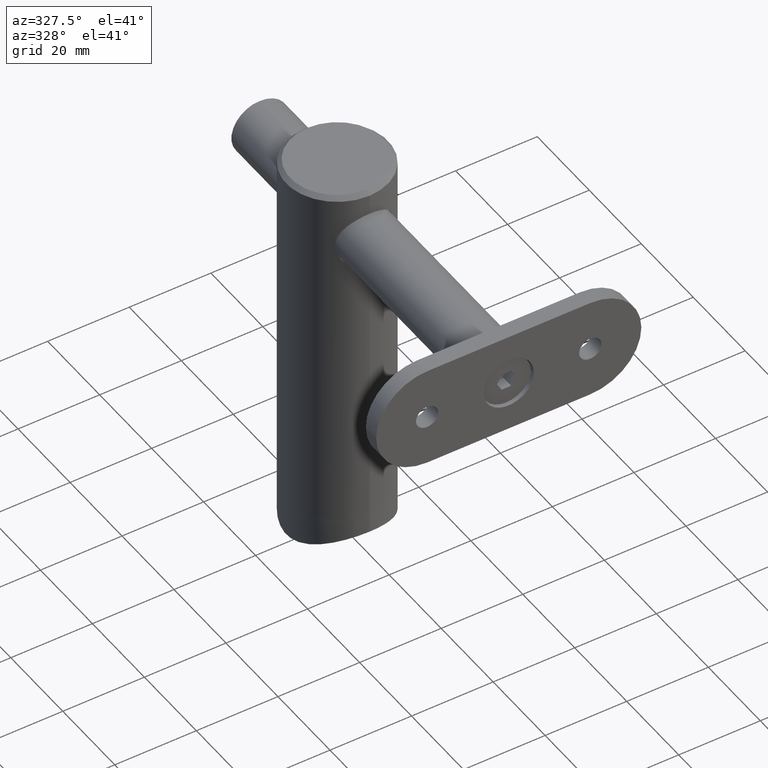
[diagram: clean part render]
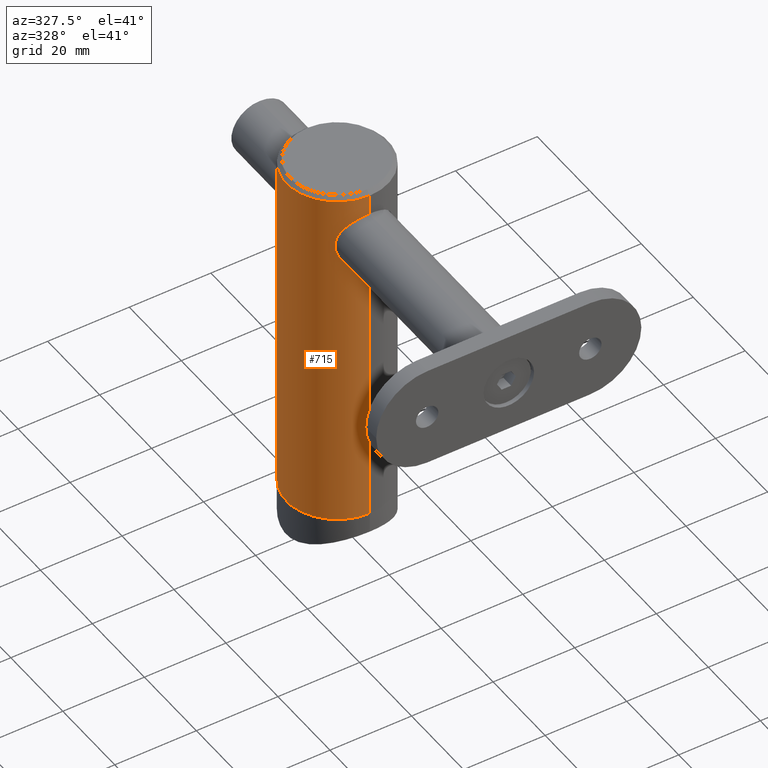
[diagram: same view with one face highlighted and labeled with its STEP entity id]
A machine part, auxiliary view. The second image highlights one B-rep face of the part: STEP entity #715.
In plain terms, the highlighted cylindrical surface (partial cylindrical patch) has radius 12.5 mm, axis along (0, 0, -1).
Its self-contained STEP definition (entity closure, byte-faithful):
#96 = VERTEX_POINT ( 'NONE', #14581 ) ;
#141 = CARTESIAN_POINT ( 'NONE',  ( -6.148078400945676592, -10.88734605281070422, 78.58038588945871084 ) ) ;
#159 = ORIENTED_EDGE ( 'NONE', *, *, #15723, .F. ) ;
#168 = CARTESIAN_POINT ( 'NONE',  ( 0.000000000000000000, 12.49999999999999467, 87.00000000000000000 ) ) ;
#201 = CARTESIAN_POINT ( 'NONE',  ( -5.633085906007541332, -11.16254692090160461, 70.65396086375709217 ) ) ;
#267 = CARTESIAN_POINT ( 'NONE',  ( -0.9511355239451600996, -12.47236506100288445, 67.94834280267892268 ) ) ;
#338 = VERTEX_POINT ( 'NONE', #168 ) ;
#339 = CARTESIAN_POINT ( 'NONE',  ( -5.345048310374298950, -11.30501070537479791, 70.30460859623606495 ) ) ;
#432 = DIRECTION ( 'NONE',  ( -0.000000000000000000, 1.098045870766271941E-16, -1.000000000000000000 ) ) ;
#597 = EDGE_LOOP ( 'NONE', ( #159, #1292, #5007, #14484, #14548, #3759, #16360, #18716, #14000, #17195 ) ) ;
#673 = EDGE_CURVE ( 'NONE', #7620, #16041, #17970, .T. ) ;
#686 = DIRECTION ( 'NONE',  ( 0.000000000000000000, -1.000000000000000000, 0.000000000000000000 ) ) ;
#715 = ADVANCED_FACE ( 'NONE', ( #14271 ), #4097, .T. ) ;
#802 = DIRECTION ( 'NONE',  ( -0.000000000000000000, 1.098045870766271941E-16, -1.000000000000000000 ) ) ;
#822 = CARTESIAN_POINT ( 'NONE',  ( 0.000000000000000000, -6.829089316830601455E-15, 87.00000000000000000 ) ) ;
#880 = VECTOR ( 'NONE', #11729, 1000.000000000000000 ) ;
#914 = CARTESIAN_POINT ( 'NONE',  ( -7.003725121456042757, 10.35379304955138124, 73.81127548781321934 ) ) ;
#983 = CARTESIAN_POINT ( 'NONE',  ( -6.146595381488635823, 10.88816703618159565, 71.41721095202193226 ) ) ;
#1045 = CARTESIAN_POINT ( 'NONE',  ( -6.853982002503376414, 10.45369377733144312, 76.86763025503729807 ) ) ;
#1107 = CARTESIAN_POINT ( 'NONE',  ( -7.039363743819929020, 10.32948239257338408, 74.04422229401671984 ) ) ;
#1153 = CARTESIAN_POINT ( 'NONE',  ( -1.823189292361671265, 12.36656387944243640, 5.051110966584160700 ) ) ;
#1232 = CARTESIAN_POINT ( 'NONE',  ( -0.9302022205380907627, 12.46598422166855258, 2.112292869818887642 ) ) ;
#1292 = ORIENTED_EDGE ( 'NONE', *, *, #4589, .T. ) ;
#1308 = CARTESIAN_POINT ( 'NONE',  ( -0.4811991486314993738, 12.49299174562365344, 82.08768211575331009 ) ) ;
#1352 = CARTESIAN_POINT ( 'NONE',  ( -0.2743003893079644095, 12.50000000000000355, 1.900000000000005462 ) ) ;
#1439 = CARTESIAN_POINT ( 'NONE',  ( -5.350137245759822413, 11.30260226496380405, 79.68962492468297398 ) ) ;
#1636 = CARTESIAN_POINT ( 'NONE',  ( 1.290313625304569330E-16, -12.50000000000000888, 82.09999999999999432 ) ) ;
#1806 = CARTESIAN_POINT ( 'NONE',  ( 0.000000000000000000, 2.723909758835963716E-15, 0.000000000000000000 ) ) ;
#1826 = CARTESIAN_POINT ( 'NONE',  ( -6.355184909898128787, -10.76464359171548146, 71.82596901323131533 ) ) ;
#1890 = CARTESIAN_POINT ( 'NONE',  ( -4.356324323330959203, -11.72326304938613184, 80.62539833997443850 ) ) ;
#2119 = VECTOR ( 'NONE', #11003, 1000.000000000000000 ) ;
#2424 = CARTESIAN_POINT ( 'NONE',  ( -0.4799539051028682834, 12.49999999999999822, 67.90000000000000568 ) ) ;
#2486 = CARTESIAN_POINT ( 'NONE',  ( -5.628902018887846026, 11.16205403663977691, 70.66670042335572077 ) ) ;
#2526 = AXIS2_PLACEMENT_3D ( 'NONE', #822, #9616, #686 ) ;
#2603 = CARTESIAN_POINT ( 'NONE',  ( -5.186797260141185362, 11.37442896416548521, 70.14630031359379814 ) ) ;
#2719 = CARTESIAN_POINT ( 'NONE',  ( -1.052645575539821632, 12.45612933409647205, 2.177666326171957323 ) ) ;
#2732 = CARTESIAN_POINT ( 'NONE',  ( -4.699254457469035806, 11.58459427111668205, 80.32723125532280051 ) ) ;
#2792 = CARTESIAN_POINT ( 'NONE',  ( 0.000000000000000000, 12.50000000000000000, 1.372557338457839692E-15 ) ) ;
#3132 = CARTESIAN_POINT ( 'NONE',  ( -1.874052461373487910, -12.36744064349519334, 81.86437246242218180 ) ) ;
#3319 = CARTESIAN_POINT ( 'NONE',  ( -2.542285523396217606, -12.24072011514205194, 68.36667086906035706 ) ) ;
#3381 = CARTESIAN_POINT ( 'NONE',  ( -0.4809610958689493065, -12.50000000000000711, 67.89999999999999147 ) ) ;
#3759 = ORIENTED_EDGE ( 'NONE', *, *, #7703, .F. ) ;
#3903 = B_SPLINE_CURVE_WITH_KNOTS ( 'NONE', 3,
 ( #1636, #6241, #12234, #3132, #15127, #7630, #13530, #1890, #16612, #7757, #6055, #16423, #18095, #141, #7572, #17903, #12296, #4616, #9053, #9246, #15005, #16489, #12051, #13707, #6185, #6125, #1826, #9121, #17974, #201, #339, #10559, #10752, #10684, #4818, #3319, #9302, #15195, #6308, #267, #3381, #10622 ),
 .UNSPECIFIED., .F., .F.,
 ( 4, 2, 2, 2, 2, 2, 2, 2, 2, 2, 2, 2, 2, 2, 2, 2, 2, 2, 2, 2, 4 ),
 ( 1.250545881557408011E-19, 0.001419307301426417974, 0.002838614602852835515, 0.004257921904279252621, 0.005677229205705669295, 0.006386882856418878499, 0.007096536507132086835, 0.008515843808558505243, 0.009935151109984921916, 0.01135445841141133859, 0.01277376571283775873, 0.01348341936355096707, 0.01419307301426417714, 0.01490272666497738548, 0.01561238031569059381, 0.01703168761711697926, 0.01845099491854336471, 0.01987030221996975016, 0.02057995587068294288, 0.02128960952139613561, 0.02270891682282252105 ),
 .UNSPECIFIED. ) ;
#3935 = EDGE_CURVE ( 'NONE', #5016, #12180, #3903, .T. ) ;
#3981 = CARTESIAN_POINT ( 'NONE',  ( -3.591928364928691053, 11.97960984808971929, 68.85822097251376306 ) ) ;
#4024 = VECTOR ( 'NONE', #16370, 1000.000000000000000 ) ;
#4036 = CARTESIAN_POINT ( 'NONE',  ( -1.992762697854684184, 12.34024839959371889, 4.676597208822471430 ) ) ;
#4051 = CARTESIAN_POINT ( 'NONE',  ( -6.357972462635662403, 10.76299649604914954, 78.16845701976458827 ) ) ;
#4097 = CYLINDRICAL_SURFACE ( 'NONE', #17131, 12.50000000000000178 ) ;
#4220 = CARTESIAN_POINT ( 'NONE',  ( -1.992047017919825969, 12.34036526571288306, 3.321224189597172138 ) ) ;
#4233 = CARTESIAN_POINT ( 'NONE',  ( 1.310074275435993587E-16, 12.49999999999999467, 82.09999999999999432 ) ) ;
#4238 = VERTEX_POINT ( 'NONE', #15934 ) ;
#4285 = CARTESIAN_POINT ( 'NONE',  ( -1.059040836926604667, 12.45762628977003494, 5.833907784815527187 ) ) ;
#4424 = CARTESIAN_POINT ( 'NONE',  ( -4.346392963122591269, 11.72154789661119878, 80.61883026206068337 ) ) ;
#4589 = EDGE_CURVE ( 'NONE', #4238, #338, #17818, .T. ) ;
#4616 = CARTESIAN_POINT ( 'NONE',  ( -7.051303418075907992, -10.32191336193628217, 75.95439068768591540 ) ) ;
#4818 = CARTESIAN_POINT ( 'NONE',  ( -3.186329035902472295, -12.09508519001900240, 68.63805128578243853 ) ) ;
#4954 = LINE ( 'NONE', #8995, #4024 ) ;
#5007 = ORIENTED_EDGE ( 'NONE', *, *, #5416, .T. ) ;
#5016 = VERTEX_POINT ( 'NONE', #16694 ) ;
#5130 = CARTESIAN_POINT ( 'NONE',  ( 1.530808498934191719E-15, -12.50000000000000178, 24.80688495222045375 ) ) ;
#5329 = CARTESIAN_POINT ( 'NONE',  ( 1.530808498934021719E-15, -12.50000000000000711, 67.90000000000000568 ) ) ;
#5416 = EDGE_CURVE ( 'NONE', #338, #6898, #4954, .T. ) ;
#5479 = CARTESIAN_POINT ( 'NONE',  ( -5.765905370694645704, 11.09166530797232397, 70.85077256676534319 ) ) ;
#5525 = CARTESIAN_POINT ( 'NONE',  ( 6.970107993329720685E-17, 12.50000000000000355, 6.099999999999998757 ) ) ;
#5606 = CARTESIAN_POINT ( 'NONE',  ( -5.637531711305973303, 11.16027666235574323, 79.34016184945231487 ) ) ;
#5662 = CARTESIAN_POINT ( 'NONE',  ( -2.086126021674024500, 12.32472383621020029, 3.722835077555702643 ) ) ;
#5866 = CARTESIAN_POINT ( 'NONE',  ( -3.195008394635605598, 12.09282248704221097, 81.35766473062257376 ) ) ;
#5933 = CARTESIAN_POINT ( 'NONE',  ( -0.2397798003476031004, 12.50000000000000000, 82.10000000000002274 ) ) ;
#5994 = CARTESIAN_POINT ( 'NONE',  ( -0.9553685758214900403, 12.46569958972207814, 82.03946455910859470 ) ) ;
#6055 = CARTESIAN_POINT ( 'NONE',  ( -5.339918604441927563, -11.30314907400740942, 79.68477827955356929 ) ) ;
#6110 = AXIS2_PLACEMENT_3D ( 'NONE', #1806, #432, #12276 ) ;
#6125 = CARTESIAN_POINT ( 'NONE',  ( -6.454712516760552354, -10.70503448327142237, 72.03349485711554223 ) ) ;
#6185 = CARTESIAN_POINT ( 'NONE',  ( -6.634052515645173287, -10.59483006856256537, 72.45976110248518864 ) ) ;
#6241 = CARTESIAN_POINT ( 'NONE',  ( -0.4805659640073332572, -12.50000000000001066, 82.09999999999999432 ) ) ;
#6308 = CARTESIAN_POINT ( 'NONE',  ( -1.641484044854728097, -12.39391654726005321, 68.08836762162168554 ) ) ;
#6498 = VECTOR ( 'NONE', #13344, 1000.000000000000000 ) ;
#6613 = CARTESIAN_POINT ( 'NONE',  ( 1.310074275435993587E-16, 12.49999999999999467, 82.09999999999999432 ) ) ;
#6898 = VERTEX_POINT ( 'NONE', #6613 ) ;
#6904 = CARTESIAN_POINT ( 'NONE',  ( -6.721338987096790341, 10.54124068422388660, 72.66633231102328239 ) ) ;
#6966 = CARTESIAN_POINT ( 'NONE',  ( -7.100327846217661332, 10.28763066194222553, 75.47389198161975798 ) ) ;
#7091 = CARTESIAN_POINT ( 'NONE',  ( -2.032484663200844199, 12.33368337160504602, 3.454336856300159297 ) ) ;
#7162 = CARTESIAN_POINT ( 'NONE',  ( -4.707102817139632300, 11.58512768093194367, 69.66537265374722665 ) ) ;
#7217 = CARTESIAN_POINT ( 'NONE',  ( -1.580836478937785561, 12.40001885819545357, 2.610867943919020107 ) ) ;
#7287 = CARTESIAN_POINT ( 'NONE',  ( -1.887587319264244057, 12.35677335900393103, 4.930538051398362320 ) ) ;
#7572 = CARTESIAN_POINT ( 'NONE',  ( -6.364631587517303402, -10.76036465851576907, 78.18015725607450861 ) ) ;
#7620 = VERTEX_POINT ( 'NONE', #11523 ) ;
#7630 = CARTESIAN_POINT ( 'NONE',  ( -3.187496164584713743, -12.09474588327909572, 81.36129952231799223 ) ) ;
#7698 = CIRCLE ( 'NONE', #6110, 12.49999999999999645 ) ;
#7703 = EDGE_CURVE ( 'NONE', #7620, #96, #17566, .T. ) ;
#7757 = CARTESIAN_POINT ( 'NONE',  ( -5.187679897919512229, -11.37402628047062514, 79.85275722496859885 ) ) ;
#8334 = CARTESIAN_POINT ( 'NONE',  ( -6.363243337331820904, 10.76119357562656376, 71.81699247692640142 ) ) ;
#8529 = CARTESIAN_POINT ( 'NONE',  ( -6.715641276056542708, 10.54309940824726688, 77.31630617827102014 ) ) ;
#8643 = CARTESIAN_POINT ( 'NONE',  ( -2.099916014006710352, 12.32235175367555513, 3.859997541257774945 ) ) ;
#8718 = CARTESIAN_POINT ( 'NONE',  ( -1.669446844424485432, 12.38825472392713323, 2.718715876743982740 ) ) ;
#8788 = CARTESIAN_POINT ( 'NONE',  ( -2.549971958430652386, 12.23912789366316645, 81.63039500168852669 ) ) ;
#8802 = LINE ( 'NONE', #19103, #880 ) ;
#8849 = CARTESIAN_POINT ( 'NONE',  ( -4.163804789402314910, 11.78780696279484275, 80.75540257205885553 ) ) ;
#8995 = CARTESIAN_POINT ( 'NONE',  ( 0.000000000000000000, 12.50000000000000178, 24.80688495222045375 ) ) ;
#9053 = CARTESIAN_POINT ( 'NONE',  ( -7.099863319915299620, -10.28795124725936816, 75.48272081303903747 ) ) ;
#9121 = CARTESIAN_POINT ( 'NONE',  ( -6.136548808116675247, -10.89076193942645965, 71.42150636865642355 ) ) ;
#9246 = CARTESIAN_POINT ( 'NONE',  ( -7.100136108486188924, -10.28776298659892596, 74.52130825598261765 ) ) ;
#9302 = CARTESIAN_POINT ( 'NONE',  ( -2.319323625872138361, -12.28506725716603754, 68.28537096905358794 ) ) ;
#9616 = DIRECTION ( 'NONE',  ( -0.000000000000000000, 1.098045870766268366E-16, -1.000000000000000000 ) ) ;
#9661 = CARTESIAN_POINT ( 'NONE',  ( 0.000000000000000000, 12.50000000000000178, 24.80688495222045375 ) ) ;
#9913 = CARTESIAN_POINT ( 'NONE',  ( -5.339170464550233142, 11.30350596078846870, 70.31435362947014767 ) ) ;
#9973 = CARTESIAN_POINT ( 'NONE',  ( -6.862816372559787936, 10.44818337300496047, 73.12045813888649093 ) ) ;
#10022 = CARTESIAN_POINT ( 'NONE',  ( -1.582460249035301691, 12.39980942031197131, 5.387258285073711406 ) ) ;
#10094 = CARTESIAN_POINT ( 'NONE',  ( -2.086551808546025732, 12.32465138950227512, 4.274013215971939061 ) ) ;
#10210 = CARTESIAN_POINT ( 'NONE',  ( -0.5474908082748963789, 12.48874150837816899, 6.032087653072125022 ) ) ;
#10305 = CARTESIAN_POINT ( 'NONE',  ( 1.530808498934191324E-15, -12.49999999999999289, -1.372557338457839692E-15 ) ) ;
#10476 = DIRECTION ( 'NONE',  ( -0.000000000000000000, 1.098045870766271941E-16, -1.000000000000000000 ) ) ;
#10559 = CARTESIAN_POINT ( 'NONE',  ( -4.703273353215213781, -11.58671775153815986, 69.66188594729268857 ) ) ;
#10622 = CARTESIAN_POINT ( 'NONE',  ( 1.530808498934021719E-15, -12.50000000000000711, 67.90000000000000568 ) ) ;
#10678 = EDGE_CURVE ( 'NONE', #18437, #96, #17848, .T. ) ;
#10684 = CARTESIAN_POINT ( 'NONE',  ( -3.589032839019618670, -11.98032867455220796, 68.85692947369597050 ) ) ;
#10752 = CARTESIAN_POINT ( 'NONE',  ( -4.346314444032338464, -11.72684879340800812, 69.36723664936094735 ) ) ;
#11003 = DIRECTION ( 'NONE',  ( -0.000000000000000000, 1.098045870766271941E-16, -1.000000000000000000 ) ) ;
#11466 = CARTESIAN_POINT ( 'NONE',  ( -6.636142668883750595, 10.59351820108907916, 77.53475660832805261 ) ) ;
#11523 = CARTESIAN_POINT ( 'NONE',  ( -9.798441303750187635E-23, 12.50000000000000355, 1.900000000000005684 ) ) ;
#11712 = CARTESIAN_POINT ( 'NONE',  ( -0.1389824923851663285, 12.50000000000000355, 6.099999999999999645 ) ) ;
#11729 = DIRECTION ( 'NONE',  ( -0.000000000000000000, 1.098045870766271941E-16, -1.000000000000000000 ) ) ;
#11775 = CARTESIAN_POINT ( 'NONE',  ( -1.886269248244665464, 12.35697594623955275, 3.066738918888293419 ) ) ;
#11920 = CARTESIAN_POINT ( 'NONE',  ( -2.327268730588588852, 12.28355408712934960, 81.71186112651896849 ) ) ;
#12051 = CARTESIAN_POINT ( 'NONE',  ( -6.852873825890776871, -10.45442333798883183, 73.12823189057863260 ) ) ;
#12099 = DIRECTION ( 'NONE',  ( 0.000000000000000000, 1.000000000000000000, 0.000000000000000000 ) ) ;
#12180 = VERTEX_POINT ( 'NONE', #5329 ) ;
#12234 = CARTESIAN_POINT ( 'NONE',  ( -0.9512168273055808809, -12.47240342699864257, 82.05172804908774253 ) ) ;
#12276 = DIRECTION ( 'NONE',  ( 0.000000000000000000, 1.000000000000000000, 1.098045870766272064E-16 ) ) ;
#12296 = CARTESIAN_POINT ( 'NONE',  ( -6.863499158220037089, -10.44773442666880925, 76.87726417523569467 ) ) ;
#12898 = CARTESIAN_POINT ( 'NONE',  ( -3.187016512190915307, 12.09486426576824591, 68.63847765149670010 ) ) ;
#12959 = CARTESIAN_POINT ( 'NONE',  ( -6.457309689604062264, 10.70346527864367481, 77.96083301754556771 ) ) ;
#13003 = CARTESIAN_POINT ( 'NONE',  ( -2.033241785620697240, 12.33355821179407208, 4.542871562600156565 ) ) ;
#13015 = CARTESIAN_POINT ( 'NONE',  ( -1.874312031601152784, 12.36740688548126954, 68.13568800573901285 ) ) ;
#13071 = CARTESIAN_POINT ( 'NONE',  ( -1.821665953450997799, 12.36678782163336798, 2.946304159207088880 ) ) ;
#13141 = CARTESIAN_POINT ( 'NONE',  ( -1.387160506701220042, 12.42317581721323627, 2.417433233313488916 ) ) ;
#13152 = CARTESIAN_POINT ( 'NONE',  ( -1.189197617727922651, 12.44547036346077462, 82.00366006475732661 ) ) ;
#13344 = DIRECTION ( 'NONE',  ( -0.000000000000000000, 1.098045870766271941E-16, -1.000000000000000000 ) ) ;
#13404 = CARTESIAN_POINT ( 'NONE',  ( -3.597349250370595719, 11.97780161950913325, 81.13814261268854011 ) ) ;
#13524 = LINE ( 'NONE', #5130, #2119 ) ;
#13530 = CARTESIAN_POINT ( 'NONE',  ( -3.592029824636711055, -11.97955674781281488, 81.14166018535316027 ) ) ;
#13576 = VERTEX_POINT ( 'NONE', #10305 ) ;
#13707 = CARTESIAN_POINT ( 'NONE',  ( -6.713868405384194382, -10.54423150536104181, 72.67849907081439653 ) ) ;
#14000 = ORIENTED_EDGE ( 'NONE', *, *, #18887, .F. ) ;
#14271 = FACE_OUTER_BOUND ( 'NONE', #597, .T. ) ;
#14410 = CARTESIAN_POINT ( 'NONE',  ( -0.2762664775608889012, 12.49768328457756006, 6.086337280568454133 ) ) ;
#14419 = CARTESIAN_POINT ( 'NONE',  ( -6.139503581357961259, 10.88909560909868901, 78.57343385222416998 ) ) ;
#14484 = ORIENTED_EDGE ( 'NONE', *, *, #18881, .F. ) ;
#14487 = CARTESIAN_POINT ( 'NONE',  ( -7.052734923715453519, 10.32092856185195195, 75.94404489671643432 ) ) ;
#14547 = CARTESIAN_POINT ( 'NONE',  ( 1.479114197289397135E-28, 12.49999999999999645, 67.90000000000000568 ) ) ;
#14548 = ORIENTED_EDGE ( 'NONE', *, *, #10678, .T. ) ;
#14581 = CARTESIAN_POINT ( 'NONE',  ( 6.970107993329720685E-17, 12.50000000000000355, 6.099999999999998757 ) ) ;
#14591 = CARTESIAN_POINT ( 'NONE',  ( -2.100083223394554111, 12.32232325748718615, 4.137471484870282268 ) ) ;
#14742 = CARTESIAN_POINT ( 'NONE',  ( -1.878213508060260439, 12.36018587133492552, 81.85110017035161434 ) ) ;
#14804 = CARTESIAN_POINT ( 'NONE',  ( -1.650620416519912759, 12.39271462522872191, 81.90947881661521990 ) ) ;
#14867 = CARTESIAN_POINT ( 'NONE',  ( -4.868944799639089993, 11.51408151635097887, 80.17252493070223807 ) ) ;
#14994 = CARTESIAN_POINT ( 'NONE',  ( 0.000000000000000000, 0.000000000000000000, 24.80688495222045375 ) ) ;
#15005 = CARTESIAN_POINT ( 'NONE',  ( -7.051980222211305716, -10.32144769786894756, 74.05050001367733614 ) ) ;
#15127 = CARTESIAN_POINT ( 'NONE',  ( -2.330508779459667501, -12.28868335539655376, 81.72272208563961726 ) ) ;
#15195 = CARTESIAN_POINT ( 'NONE',  ( -1.869096526884923559, -12.36157828789707835, 68.14638903365944600 ) ) ;
#15723 = EDGE_CURVE ( 'NONE', #4238, #5016, #13524, .T. ) ;
#15729 = CARTESIAN_POINT ( 'NONE',  ( 1.479114197289397135E-28, 12.49999999999999645, 67.90000000000000568 ) ) ;
#15846 = CARTESIAN_POINT ( 'NONE',  ( -7.099833554373474520, 10.28797178943786861, 74.75572396004346842 ) ) ;
#15913 = CARTESIAN_POINT ( 'NONE',  ( -7.087426699821466336, 10.29656404782429746, 74.51571112368853278 ) ) ;
#15934 = CARTESIAN_POINT ( 'NONE',  ( 1.530808498934192507E-15, -12.50000000000000888, 87.00000000000000000 ) ) ;
#16019 = CARTESIAN_POINT ( 'NONE',  ( -1.292831960822521831, 12.43448438498407604, 5.677274419469252820 ) ) ;
#16041 = VERTEX_POINT ( 'NONE', #2792 ) ;
#16117 = VECTOR ( 'NONE', #802, 1000.000000000000000 ) ;
#16158 = CARTESIAN_POINT ( 'NONE',  ( -9.798441303750187635E-23, 12.50000000000000355, 1.900000000000005684 ) ) ;
#16229 = CARTESIAN_POINT ( 'NONE',  ( 0.000000000000000000, 12.50000000000000178, 24.80688495222045375 ) ) ;
#16360 = ORIENTED_EDGE ( 'NONE', *, *, #673, .T. ) ;
#16370 = DIRECTION ( 'NONE',  ( -0.000000000000000000, 1.098045870766271941E-16, -1.000000000000000000 ) ) ;
#16423 = CARTESIAN_POINT ( 'NONE',  ( -5.629205280336354811, -11.16189758074911786, 79.33288889108357012 ) ) ;
#16489 = CARTESIAN_POINT ( 'NONE',  ( -6.911509236011332824, -10.41557569167955855, 73.35788736678888711 ) ) ;
#16612 = CARTESIAN_POINT ( 'NONE',  ( -4.708029709747248326, -11.58475042720365344, 80.33381269667304991 ) ) ;
#16694 = CARTESIAN_POINT ( 'NONE',  ( 1.290313625304569330E-16, -12.50000000000000888, 82.09999999999999432 ) ) ;
#16713 = EDGE_CURVE ( 'NONE', #13576, #16041, #7698, .T. ) ;
#17131 = AXIS2_PLACEMENT_3D ( 'NONE', #14994, #10476, #12099 ) ;
#17195 = ORIENTED_EDGE ( 'NONE', *, *, #3935, .F. ) ;
#17329 = CARTESIAN_POINT ( 'NONE',  ( -6.912668111617620070, 10.41480574227798783, 76.63725143042475452 ) ) ;
#17388 = CARTESIAN_POINT ( 'NONE',  ( -0.9511822130778539996, 12.47241159761730600, 67.94825715557604440 ) ) ;
#17566 = B_SPLINE_CURVE_WITH_KNOTS ( 'NONE', 3,
 ( #16158, #1352, #18891, #1232, #2719, #19161, #13141, #7217, #8718, #13071, #11775, #4220, #7091, #5662, #8643, #14591, #10094, #13003, #4036, #7287, #1153, #17627, #10022, #16019, #4285, #19089, #10210, #14410, #11712, #5525 ),
 .UNSPECIFIED., .F., .F.,
 ( 4, 2, 2, 2, 2, 2, 2, 2, 2, 2, 2, 2, 2, 2, 4 ),
 ( 0.006577226265834324424, 0.007399174158320379058, 0.007810148104563405941, 0.008221122050806432824, 0.008632095997049459707, 0.009043069943292486590, 0.009454043889535513473, 0.009865017835778542091, 0.01027599178202156897, 0.01068696572826459586, 0.01109793967450762274, 0.01150891362075065136, 0.01233086151323670512, 0.01274183545947973201, 0.01315280940572275889 ),
 .UNSPECIFIED. ) ;
#17627 = CARTESIAN_POINT ( 'NONE',  ( -1.670798748957219582, 12.38807301078725409, 5.279564379130151863 ) ) ;
#17818 = CIRCLE ( 'NONE', #2526, 12.50000000000000178 ) ;
#17848 = LINE ( 'NONE', #16229, #6498 ) ;
#17903 = CARTESIAN_POINT ( 'NONE',  ( -6.722015453373487937, -10.54080125387374345, 77.33161824979872279 ) ) ;
#17970 = LINE ( 'NONE', #9661, #16117 ) ;
#17974 = CARTESIAN_POINT ( 'NONE',  ( -6.016811922509472055, -10.95760019053422774, 71.22370518382081173 ) ) ;
#18095 = CARTESIAN_POINT ( 'NONE',  ( -5.766588826831744896, -11.09131400361185094, 79.14830821994482335 ) ) ;
#18437 = VERTEX_POINT ( 'NONE', #15729 ) ;
#18716 = ORIENTED_EDGE ( 'NONE', *, *, #16713, .F. ) ;
#18767 = CARTESIAN_POINT ( 'NONE',  ( -2.330455522349846653, 12.28868556496928122, 68.27727600612421099 ) ) ;
#18836 = CARTESIAN_POINT ( 'NONE',  ( -4.357488413051599174, 11.72285358696203161, 69.37543835206956544 ) ) ;
#18881 = EDGE_CURVE ( 'NONE', #18437, #6898, #19180, .T. ) ;
#18887 = EDGE_CURVE ( 'NONE', #12180, #13576, #8802, .T. ) ;
#18891 = CARTESIAN_POINT ( 'NONE',  ( -0.5510555997337233114, 12.49041604070636780, 1.955202883481008902 ) ) ;
#18903 = CARTESIAN_POINT ( 'NONE',  ( -6.019886174600849849, 10.95590503741819077, 78.77136084374127734 ) ) ;
#19089 = CARTESIAN_POINT ( 'NONE',  ( -0.6802983101495050366, 12.48211517639016677, 5.991454373963667202 ) ) ;
#19103 = CARTESIAN_POINT ( 'NONE',  ( 1.530808498934191719E-15, -12.50000000000000178, 24.80688495222045375 ) ) ;
#19161 = CARTESIAN_POINT ( 'NONE',  ( -1.281603546142740635, 12.43465773738692626, 2.330732173380938743 ) ) ;
#19180 = B_SPLINE_CURVE_WITH_KNOTS ( 'NONE', 3,
 ( #14547, #2424, #17388, #13015, #18767, #12898, #3981, #18836, #7162, #2603, #9913, #2486, #5479, #983, #8334, #6904, #9973, #914, #1107, #15913, #15846, #6966, #14487, #17329, #1045, #8529, #11466, #12959, #4051, #14419, #18903, #5606, #1439, #14867, #2732, #4424, #8849, #13404, #5866, #8788, #11920, #14742, #14804, #13152, #5994, #1308, #5933, #4233 ),
 .UNSPECIFIED., .F., .F.,
 ( 4, 2, 2, 2, 2, 2, 2, 2, 2, 2, 2, 2, 2, 2, 2, 2, 2, 2, 2, 2, 2, 2, 2, 4 ),
 ( 0.02270891682282252799, 0.02412525192292018852, 0.02554158702301784559, 0.02695792212311550612, 0.02837425722321316318, 0.02908242477326199171, 0.02979059232331082024, 0.03120692742340847731, 0.03262326252350612743, 0.03333143007355495596, 0.03403959762360378449, 0.03545593272370139992, 0.03616410027375020764, 0.03687226782379901535, 0.03758043537384781613, 0.03828860292389662384, 0.03970493802399420458, 0.04041310557404299841, 0.04112127312409179225, 0.04253760822418940074, 0.04324577577423820152, 0.04395394332428700923, 0.04466211087433581695, 0.04537027842438461772 ),
 .UNSPECIFIED. ) ;